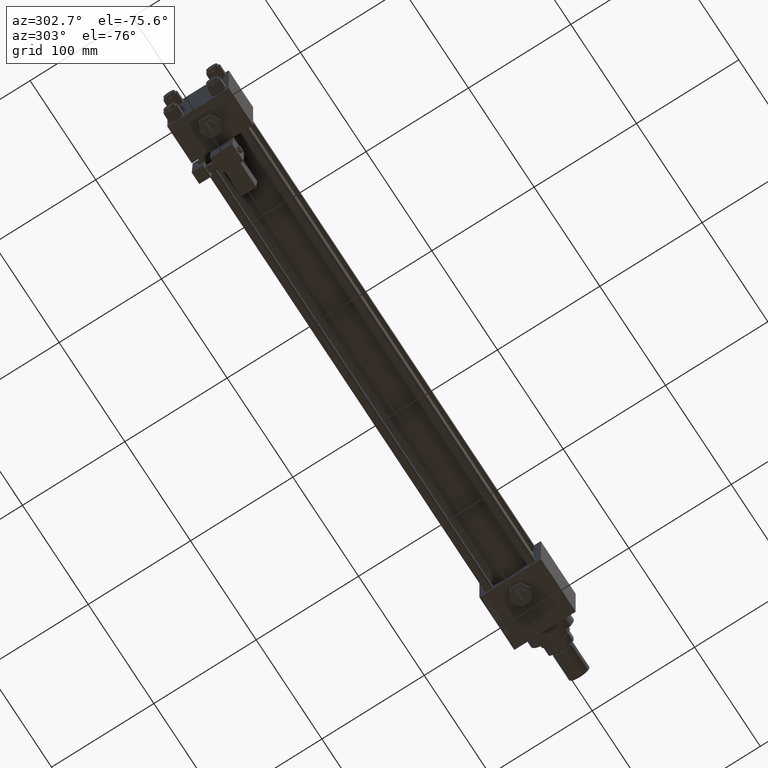
[diagram: clean part render]
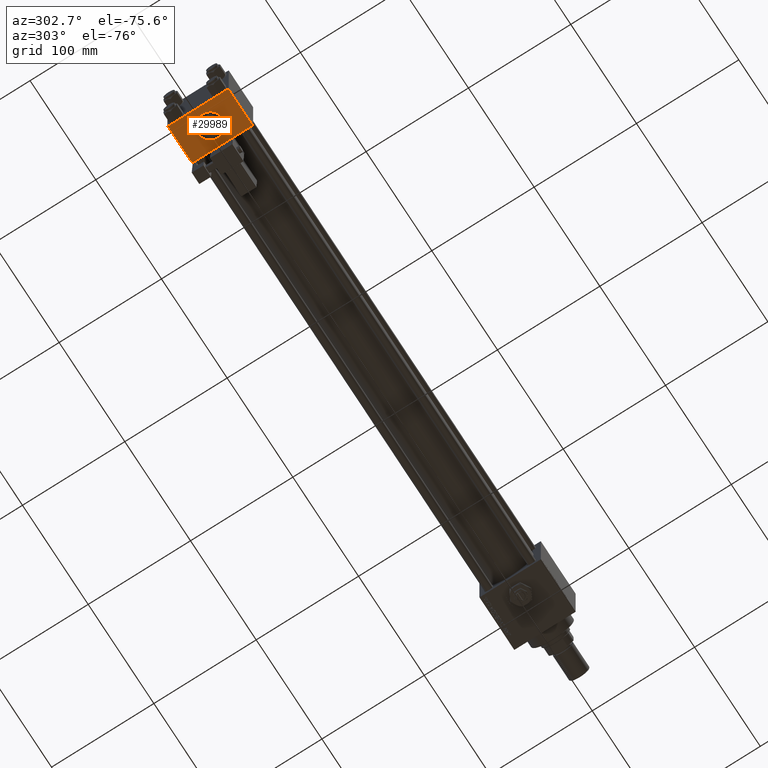
[diagram: same view with one face highlighted and labeled with its STEP entity id]
A machine part, auxiliary view. The second image highlights one B-rep face of the part: STEP entity #29989.
In plain terms, the highlighted planar face has unit normal (0, 0, -1).
Its self-contained STEP definition (entity closure, byte-faithful):
#98 = DIRECTION ( 'NONE',  ( -1.000000000000000000, 0.000000000000000000, 0.000000000000000000 ) ) ;
#275 = LINE ( 'NONE', #28027, #17566 ) ;
#1628 = VERTEX_POINT ( 'NONE', #10102 ) ;
#2264 = ORIENTED_EDGE ( 'NONE', *, *, #12157, .F. ) ;
#6722 = EDGE_CURVE ( 'NONE', #54555, #43508, #36011, .T. ) ;
#10026 = CARTESIAN_POINT ( 'NONE',  ( 18.50000000000000355, -12.00000000000000000, -30.00000000000000000 ) ) ;
#10102 = CARTESIAN_POINT ( 'NONE',  ( 37.00000000000000000, -29.50000000000000000, -30.00000000000000711 ) ) ;
#10477 = ORIENTED_EDGE ( 'NONE', *, *, #42595, .T. ) ;
#10480 = CIRCLE ( 'NONE', #11363, 12.00000000000000178 ) ;
#10856 = DIRECTION ( 'NONE',  ( 0.000000000000000000, 1.000000000000000000, -2.891205793294677833E-16 ) ) ;
#11363 = AXIS2_PLACEMENT_3D ( 'NONE', #29498, #37285, #53939 ) ;
#12157 = EDGE_CURVE ( 'NONE', #43508, #54555, #10480, .T. ) ;
#14649 = FACE_BOUND ( 'NONE', #42705, .T. ) ;
#15091 = CARTESIAN_POINT ( 'NONE',  ( 37.00000000000000000, 29.99999999999999289, -30.00000000000000000 ) ) ;
#17566 = VECTOR ( 'NONE', #44962, 1000.000000000000000 ) ;
#19104 = DIRECTION ( 'NONE',  ( 0.000000000000000000, 1.156482317317871725E-16, -1.000000000000000000 ) ) ;
#22149 = CARTESIAN_POINT ( 'NONE',  ( 37.00000000000000000, 29.49999999999997868, -30.00000000000000000 ) ) ;
#22443 = DIRECTION ( 'NONE',  ( 0.000000000000000000, 1.000000000000000000, 1.156482317317871725E-16 ) ) ;
#22750 = ORIENTED_EDGE ( 'NONE', *, *, #49041, .T. ) ;
#23069 = LINE ( 'NONE', #44743, #38712 ) ;
#23425 = VERTEX_POINT ( 'NONE', #22149 ) ;
#24292 = CARTESIAN_POINT ( 'NONE',  ( 0.000000000000000000, -29.50000000000000000, -30.00000000000000711 ) ) ;
#25092 = LINE ( 'NONE', #33722, #39721 ) ;
#27892 = DIRECTION ( 'NONE',  ( 0.000000000000000000, -1.000000000000000000, -1.156482317317871725E-16 ) ) ;
#28027 = CARTESIAN_POINT ( 'NONE',  ( 0.000000000000000000, 29.99999999999999289, -30.00000000000000000 ) ) ;
#29498 = CARTESIAN_POINT ( 'NONE',  ( 18.50000000000000355, 2.265018109976774967E-15, -30.00000000000000355 ) ) ;
#29731 = ORIENTED_EDGE ( 'NONE', *, *, #6722, .F. ) ;
#29989 = ADVANCED_FACE ( 'NONE', ( #14649, #31346 ), #48262, .T. ) ;
#31346 = FACE_OUTER_BOUND ( 'NONE', #53777, .T. ) ;
#33722 = CARTESIAN_POINT ( 'NONE',  ( 0.000000000000000000, -29.50000000000001066, -30.00000000000000711 ) ) ;
#34207 = CARTESIAN_POINT ( 'NONE',  ( 37.00000000000000000, 29.99999999999999289, -30.00000000000000000 ) ) ;
#35826 = EDGE_CURVE ( 'NONE', #23425, #1628, #53143, .T. ) ;
#36011 = CIRCLE ( 'NONE', #43104, 12.00000000000000178 ) ;
#36804 = VECTOR ( 'NONE', #27892, 1000.000000000000000 ) ;
#37285 = DIRECTION ( 'NONE',  ( 0.000000000000000000, -1.734723475976806848E-16, -1.000000000000000000 ) ) ;
#38712 = VECTOR ( 'NONE', #40015, 1000.000000000000000 ) ;
#38918 = ORIENTED_EDGE ( 'NONE', *, *, #50273, .F. ) ;
#39721 = VECTOR ( 'NONE', #98, 1000.000000000000000 ) ;
#40015 = DIRECTION ( 'NONE',  ( 1.000000000000000000, 0.000000000000000000, 0.000000000000000000 ) ) ;
#42595 = EDGE_CURVE ( 'NONE', #45569, #23425, #23069, .T. ) ;
#42705 = EDGE_LOOP ( 'NONE', ( #29731, #2264 ) ) ;
#43104 = AXIS2_PLACEMENT_3D ( 'NONE', #44472, #48625, #10856 ) ;
#43508 = VERTEX_POINT ( 'NONE', #10026 ) ;
#43696 = AXIS2_PLACEMENT_3D ( 'NONE', #34207, #19104, #22443 ) ;
#44462 = ORIENTED_EDGE ( 'NONE', *, *, #35826, .T. ) ;
#44472 = CARTESIAN_POINT ( 'NONE',  ( 18.50000000000000355, 2.265018109976774967E-15, -30.00000000000000355 ) ) ;
#44743 = CARTESIAN_POINT ( 'NONE',  ( 37.00000000000000000, 29.49999999999997868, -30.00000000000000000 ) ) ;
#44962 = DIRECTION ( 'NONE',  ( 0.000000000000000000, -1.000000000000000000, -1.156482317317871725E-16 ) ) ;
#45494 = VERTEX_POINT ( 'NONE', #24292 ) ;
#45569 = VERTEX_POINT ( 'NONE', #46478 ) ;
#46478 = CARTESIAN_POINT ( 'NONE',  ( 0.000000000000000000, 29.49999999999997868, -30.00000000000000000 ) ) ;
#48262 = PLANE ( 'NONE',  #43696 ) ;
#48625 = DIRECTION ( 'NONE',  ( 0.000000000000000000, -1.734723475976806848E-16, -1.000000000000000000 ) ) ;
#49041 = EDGE_CURVE ( 'NONE', #1628, #45494, #25092, .T. ) ;
#50273 = EDGE_CURVE ( 'NONE', #45569, #45494, #275, .T. ) ;
#53143 = LINE ( 'NONE', #15091, #36804 ) ;
#53777 = EDGE_LOOP ( 'NONE', ( #38918, #10477, #44462, #22750 ) ) ;
#53939 = DIRECTION ( 'NONE',  ( 0.000000000000000000, 1.000000000000000000, -2.891205793294677833E-16 ) ) ;
#54555 = VERTEX_POINT ( 'NONE', #54903 ) ;
#54903 = CARTESIAN_POINT ( 'NONE',  ( 18.50000000000000355, 12.00000000000000355, -30.00000000000000711 ) ) ;